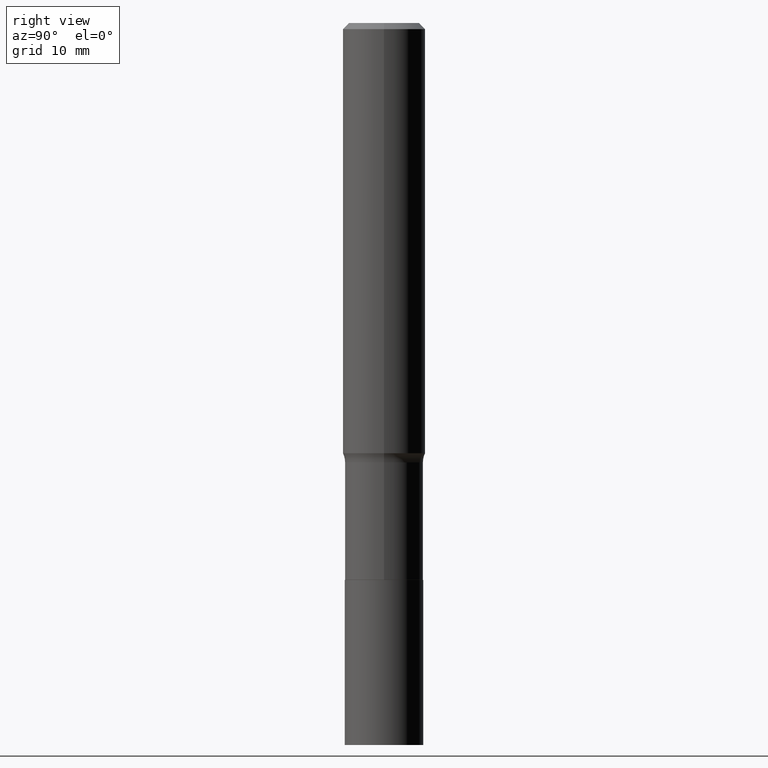
[diagram: clean part render]
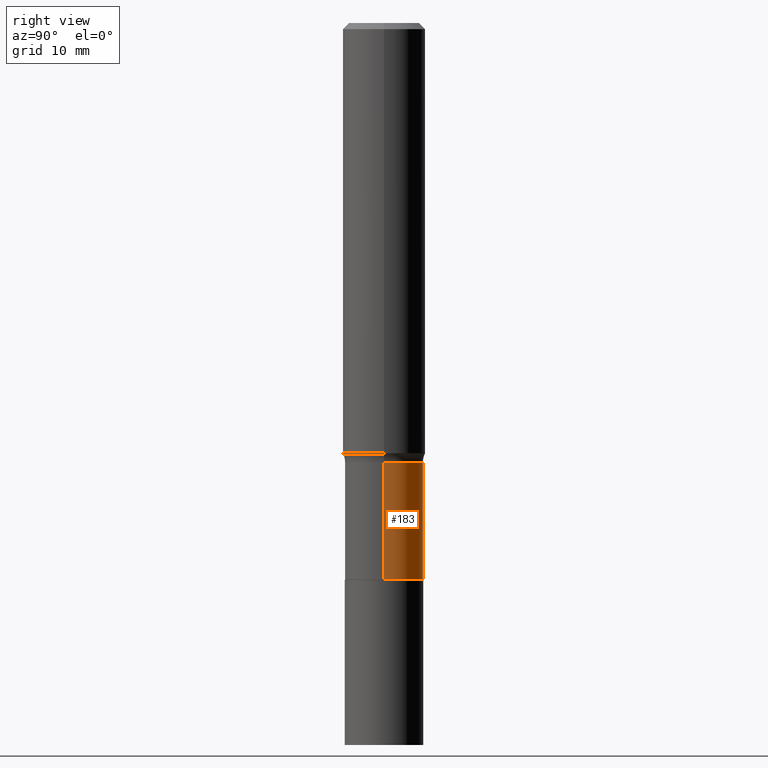
[diagram: same view with one face highlighted and labeled with its STEP entity id]
A machine part, right view. The second image highlights one B-rep face of the part: STEP entity #183.
In plain terms, the highlighted cylindrical surface (partial cylindrical patch) has radius 3.7998 mm, axis along (-0, 0, 1).
Its self-contained STEP definition (entity closure, byte-faithful):
#9 = EDGE_CURVE ( 'NONE', #314, #416, #275, .T. ) ;
#52 = EDGE_CURVE ( 'NONE', #445, #454, #216, .T. ) ;
#54 = ORIENTED_EDGE ( 'NONE', *, *, #52, .F. ) ;
#74 = ORIENTED_EDGE ( 'NONE', *, *, #9, .T. ) ;
#75 = CARTESIAN_POINT ( 'NONE',  ( -0.1496000000000000107, -5.575032388711477512E-15, -2.125399999999999956 ) ) ;
#76 = AXIS2_PLACEMENT_3D ( 'NONE', #111, #461, #135 ) ;
#92 = CARTESIAN_POINT ( 'NONE',  ( -0.1495999999999999830, 1.062971932697109757E-15, -7.358726895021338760E-30 ) ) ;
#95 = EDGE_CURVE ( 'NONE', #454, #416, #203, .T. ) ;
#111 = CARTESIAN_POINT ( 'NONE',  ( 0.000000000000000000, 0.000000000000000000, 0.000000000000000000 ) ) ;
#120 = AXIS2_PLACEMENT_3D ( 'NONE', #215, #179, #174 ) ;
#135 = DIRECTION ( 'NONE',  ( 1.000000000000000000, -6.982962677686266711E-15, 4.876176775795936353E-29 ) ) ;
#174 = DIRECTION ( 'NONE',  ( 1.000000000000000000, -6.982962677686268288E-15, 0.000000000000000000 ) ) ;
#179 = DIRECTION ( 'NONE',  ( -2.445468806185136597E-29, 3.491481338843145583E-15, 1.000000000000000000 ) ) ;
#183 = ADVANCED_FACE ( 'NONE', ( #345 ), #359, .T. ) ;
#203 = CIRCLE ( 'NONE', #376, 0.1495999999999999552 ) ;
#207 = CARTESIAN_POINT ( 'NONE',  ( 4.101051187972474781E-29, -5.855214205239955684E-15, -1.677000000000000268 ) ) ;
#215 = CARTESIAN_POINT ( 'NONE',  ( 5.197599400665889285E-29, -7.420794437577220826E-15, -2.125399999999999956 ) ) ;
#216 = LINE ( 'NONE', #387, #316 ) ;
#227 = EDGE_LOOP ( 'NONE', ( #450, #74, #458, #54 ) ) ;
#237 = CIRCLE ( 'NONE', #120, 0.1496000000000000107 ) ;
#258 = DIRECTION ( 'NONE',  ( -2.445468806185136597E-29, 3.491481338843145583E-15, 1.000000000000000000 ) ) ;
#273 = CARTESIAN_POINT ( 'NONE',  ( 0.1495999999999999552, -6.899865421821820496E-15, -1.677000000000000268 ) ) ;
#275 = LINE ( 'NONE', #92, #304 ) ;
#284 = DIRECTION ( 'NONE',  ( -2.445468806185136877E-29, 3.491481338843145188E-15, 1.000000000000000000 ) ) ;
#304 = VECTOR ( 'NONE', #380, 39.37007874015748143 ) ;
#314 = VERTEX_POINT ( 'NONE', #75 ) ;
#316 = VECTOR ( 'NONE', #284, 39.37007874015748143 ) ;
#341 = EDGE_CURVE ( 'NONE', #445, #314, #237, .T. ) ;
#345 = FACE_OUTER_BOUND ( 'NONE', #227, .T. ) ;
#359 = CYLINDRICAL_SURFACE ( 'NONE', #76, 0.1495999999999999830 ) ;
#376 = AXIS2_PLACEMENT_3D ( 'NONE', #207, #258, #464 ) ;
#380 = DIRECTION ( 'NONE',  ( -2.445468806185136877E-29, 3.491481338843145188E-15, 1.000000000000000000 ) ) ;
#387 = CARTESIAN_POINT ( 'NONE',  ( 0.1495999999999999830, -1.044651216581865404E-15, 7.294760456590720327E-30 ) ) ;
#416 = VERTEX_POINT ( 'NONE', #468 ) ;
#422 = CARTESIAN_POINT ( 'NONE',  ( 0.1496000000000000107, -8.465445654159086427E-15, -2.125399999999999956 ) ) ;
#445 = VERTEX_POINT ( 'NONE', #422 ) ;
#450 = ORIENTED_EDGE ( 'NONE', *, *, #341, .T. ) ;
#454 = VERTEX_POINT ( 'NONE', #273 ) ;
#458 = ORIENTED_EDGE ( 'NONE', *, *, #95, .F. ) ;
#461 = DIRECTION ( 'NONE',  ( -2.445468806185136597E-29, 3.491481338843145583E-15, 1.000000000000000000 ) ) ;
#464 = DIRECTION ( 'NONE',  ( 1.000000000000000000, -6.982962677686264344E-15, 0.000000000000000000 ) ) ;
#468 = CARTESIAN_POINT ( 'NONE',  ( -0.1495999999999999552, -5.575032388711479089E-15, -1.677000000000000268 ) ) ;